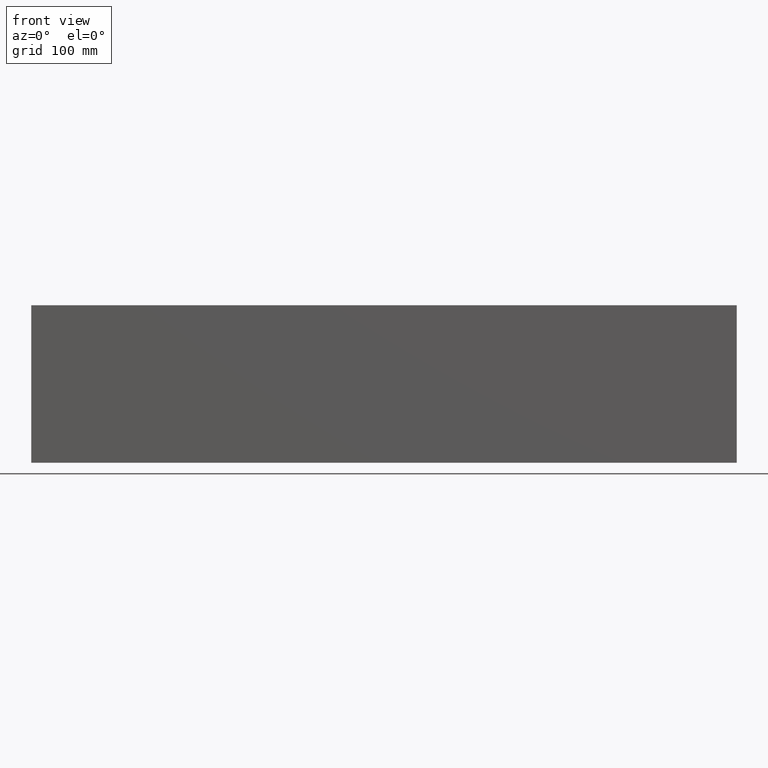
[diagram: clean part render]
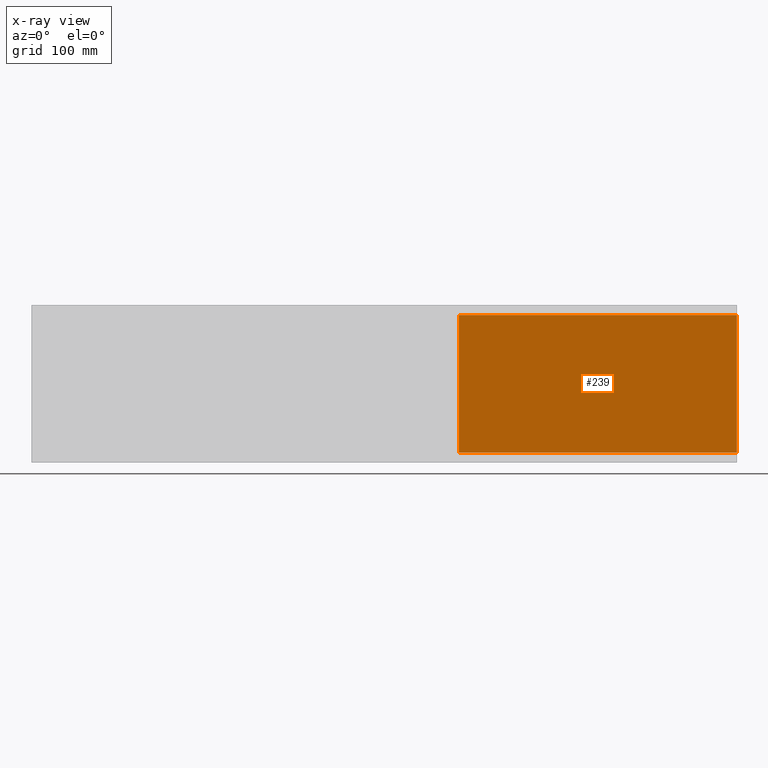
[diagram: x-ray — body ghosted, one internal face saturated and labeled with its STEP entity id]
A machine part, front view, then the same camera in x-ray: the body is ghosted and one INTERNAL B-rep face — a face not visible from any outside direction — is saturated and labeled: STEP entity #239.
In plain terms, the highlighted planar face has unit normal (-0, 1, 0).
Its self-contained STEP definition (entity closure, byte-faithful):
#20 = VECTOR ( 'NONE', #1569, 1000.000000000000000 ) ;
#106 = VECTOR ( 'NONE', #1523, 1000.000000000000000 ) ;
#239 = ADVANCED_FACE ( 'NONE', ( #491 ), #1242, .F. ) ;
#243 = AXIS2_PLACEMENT_3D ( 'NONE', #532, #522, #499 ) ;
#287 = EDGE_CURVE ( 'NONE', #1281, #1136, #363, .T. ) ;
#359 = DIRECTION ( 'NONE',  ( -1.000000000000000000, -1.219727444046192488E-16, 0.0000000000000000000 ) ) ;
#361 = CARTESIAN_POINT ( 'NONE',  ( 650.0000000000000000, 7.999999999999983125, 135.9999999999999432 ) ) ;
#363 = LINE ( 'NONE', #361, #1259 ) ;
#475 = EDGE_CURVE ( 'NONE', #1095, #1366, #827, .T. ) ;
#491 = FACE_OUTER_BOUND ( 'NONE', #1072, .T. ) ;
#499 = DIRECTION ( 'NONE',  ( -1.000000000000000000, -1.219727444046192488E-16, 0.0000000000000000000 ) ) ;
#511 = EDGE_CURVE ( 'NONE', #1281, #1366, #1528, .T. ) ;
#512 = CARTESIAN_POINT ( 'NONE',  ( 650.0000000000000000, 7.999999999999983125, 9.000000000000001776 ) ) ;
#522 = DIRECTION ( 'NONE',  ( -1.219727444046192488E-16, 1.000000000000000000, 0.0000000000000000000 ) ) ;
#532 = CARTESIAN_POINT ( 'NONE',  ( 650.0000000000000000, 7.999999999999983125, 407.0592527576124553 ) ) ;
#589 = ORIENTED_EDGE ( 'NONE', *, *, #1001, .T. ) ;
#809 = CARTESIAN_POINT ( 'NONE',  ( 650.0000000000000000, 7.999999999999983125, 9.000000000000001776 ) ) ;
#827 = LINE ( 'NONE', #512, #20 ) ;
#848 = CARTESIAN_POINT ( 'NONE',  ( 650.0000000000000000, 7.999999999999983125, 135.9999999999999432 ) ) ;
#898 = CARTESIAN_POINT ( 'NONE',  ( 393.9999999999999432, 7.999999999999952038, 135.9999999999999432 ) ) ;
#915 = CARTESIAN_POINT ( 'NONE',  ( 393.9999999999999432, 7.999999999999952038, 9.000000000000001776 ) ) ;
#960 = DIRECTION ( 'NONE',  ( -0.0000000000000000000, -0.0000000000000000000, -1.000000000000000000 ) ) ;
#962 = CARTESIAN_POINT ( 'NONE',  ( 393.9999999999999432, 7.999999999999952038, 407.0592527576124553 ) ) ;
#964 = LINE ( 'NONE', #962, #1337 ) ;
#1001 = EDGE_CURVE ( 'NONE', #1136, #1095, #964, .T. ) ;
#1072 = EDGE_LOOP ( 'NONE', ( #1489, #1294, #589, #1335 ) ) ;
#1095 = VERTEX_POINT ( 'NONE', #915 ) ;
#1136 = VERTEX_POINT ( 'NONE', #898 ) ;
#1242 = PLANE ( 'NONE',  #243 ) ;
#1259 = VECTOR ( 'NONE', #359, 1000.000000000000000 ) ;
#1281 = VERTEX_POINT ( 'NONE', #848 ) ;
#1294 = ORIENTED_EDGE ( 'NONE', *, *, #287, .T. ) ;
#1335 = ORIENTED_EDGE ( 'NONE', *, *, #475, .T. ) ;
#1337 = VECTOR ( 'NONE', #960, 1000.000000000000000 ) ;
#1366 = VERTEX_POINT ( 'NONE', #809 ) ;
#1489 = ORIENTED_EDGE ( 'NONE', *, *, #511, .F. ) ;
#1523 = DIRECTION ( 'NONE',  ( -0.0000000000000000000, -0.0000000000000000000, -1.000000000000000000 ) ) ;
#1526 = CARTESIAN_POINT ( 'NONE',  ( 650.0000000000000000, 7.999999999999983125, 407.0592527576124553 ) ) ;
#1528 = LINE ( 'NONE', #1526, #106 ) ;
#1569 = DIRECTION ( 'NONE',  ( 1.000000000000000000, 1.219727444046192242E-16, -0.0000000000000000000 ) ) ;